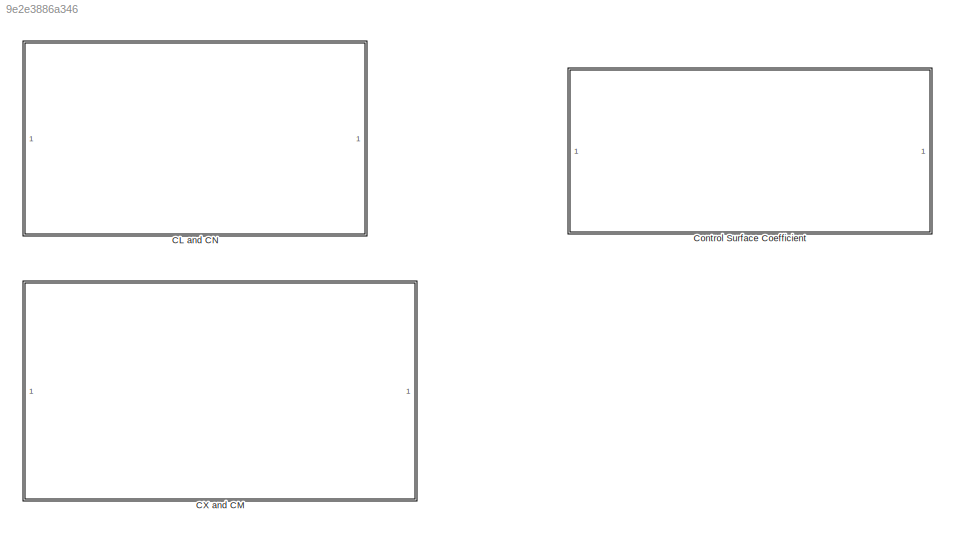
MODEL slx_9e2e3886a346
KIND library
CONFIG AbsTol = auto
CONFIG EnableMultiTasking = off
CONFIG FixedStep = auto
CONFIG MaxStep = auto
CONFIG MinStep = auto
CONFIG RelTol = 1e-3
CONFIG SampleTimeConstraint = Unconstrained
CONFIG SolverName = VariableStepAuto
CONFIG StartTime = 0.0
CONFIG StopTime = 10.0
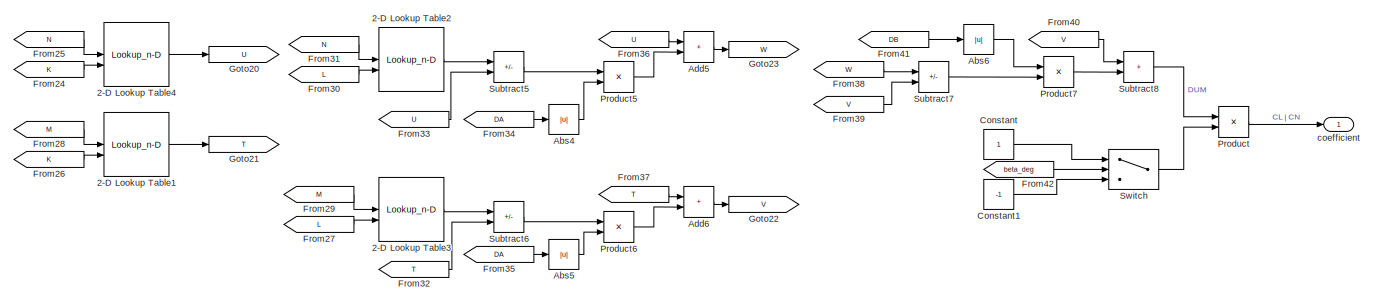
[diagram: CL and CN - part 1/2, right side, full height]
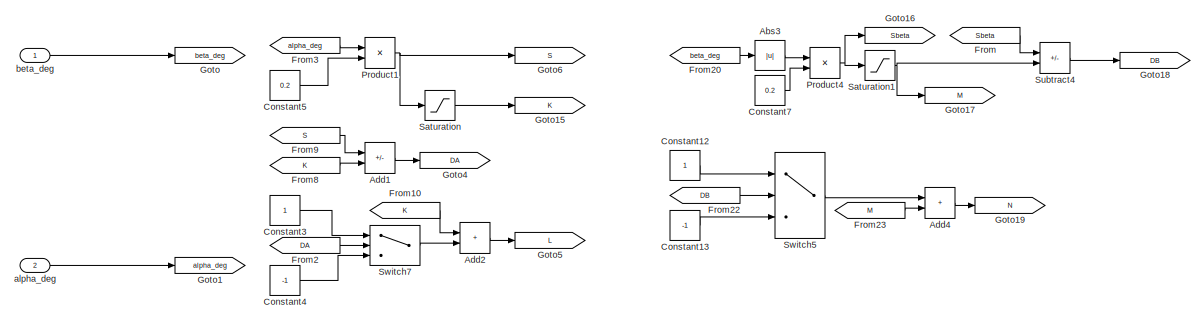
[diagram: CL and CN - part 2/2, left side, full height]
BLOCK [SubSystem] CL and CN
BLOCK [Lookup_n-D] CL and CN/2-D Lookup Table1
  BreakpointsForDimension1 = betaBkpts_nd
  BreakpointsForDimension2 = alphaBkpts_nd
  DiagnosticForOutOfRangeInput = Warning
  ExtrapMethod = Clip
  InputPortMap = u0,u1
  InternalRulePriority = Speed
  RndMeth = Simplest
  Table = aeroData
BLOCK [Lookup_n-D] CL and CN/2-D Lookup Table2
  BreakpointsForDimension1 = betaBkpts_nd
  BreakpointsForDimension2 = alphaBkpts_nd
  DiagnosticForOutOfRangeInput = Warning
  ExtrapMethod = Clip
  InputPortMap = u0,u1
  InternalRulePriority = Speed
  RndMeth = Simplest
  Table = aeroData
BLOCK [Lookup_n-D] CL and CN/2-D Lookup Table3
  BreakpointsForDimension1 = betaBkpts_nd
  BreakpointsForDimension2 = alphaBkpts_nd
  DiagnosticForOutOfRangeInput = Warning
  ExtrapMethod = Clip
  InputPortMap = u0,u1
  InternalRulePriority = Speed
  RndMeth = Simplest
  Table = aeroData
BLOCK [Lookup_n-D] CL and CN/2-D Lookup Table4
  BreakpointsForDimension1 = betaBkpts_nd
  BreakpointsForDimension2 = alphaBkpts_nd
  DiagnosticForOutOfRangeInput = Warning
  ExtrapMethod = Clip
  InputPortMap = u0,u1
  InternalRulePriority = Speed
  RndMeth = Simplest
  Table = aeroData
BLOCK [Abs] CL and CN/Abs3
  SaturateOnIntegerOverflow = off
BLOCK [Abs] CL and CN/Abs4
  SaturateOnIntegerOverflow = off
BLOCK [Abs] CL and CN/Abs5
  SaturateOnIntegerOverflow = off
BLOCK [Abs] CL and CN/Abs6
  SaturateOnIntegerOverflow = off
BLOCK [Sum] CL and CN/Add1
  IconShape = rectangular
  Inputs = +-
BLOCK [Sum] CL and CN/Add2
  IconShape = rectangular
BLOCK [Sum] CL and CN/Add4
  IconShape = rectangular
BLOCK [Sum] CL and CN/Add5
  IconShape = rectangular
BLOCK [Sum] CL and CN/Add6
  IconShape = rectangular
BLOCK [Constant] CL and CN/Constant
BLOCK [Constant] CL and CN/Constant1
  Value = -1
BLOCK [Constant] CL and CN/Constant12
BLOCK [Constant] CL and CN/Constant13
  Value = -1
BLOCK [Constant] CL and CN/Constant3
BLOCK [Constant] CL and CN/Constant4
  Value = -1
BLOCK [Constant] CL and CN/Constant5
  Value = 0.2
BLOCK [Constant] CL and CN/Constant7
  Value = 0.2
BLOCK [From] CL and CN/From
  GotoTag = Sbeta
BLOCK [From] CL and CN/From10
  GotoTag = K
BLOCK [From] CL and CN/From2
  GotoTag = DA
BLOCK [From] CL and CN/From20
  GotoTag = beta_deg
BLOCK [From] CL and CN/From22
  GotoTag = DB
BLOCK [From] CL and CN/From23
  GotoTag = M
BLOCK [From] CL and CN/From24
  GotoTag = K
BLOCK [From] CL and CN/From25
  GotoTag = N
BLOCK [From] CL and CN/From26
  GotoTag = K
BLOCK [From] CL and CN/From27
  GotoTag = L
BLOCK [From] CL and CN/From28
  GotoTag = M
BLOCK [From] CL and CN/From29
  GotoTag = M
BLOCK [From] CL and CN/From3
  GotoTag = alpha_deg
BLOCK [From] CL and CN/From30
  GotoTag = L
BLOCK [From] CL and CN/From31
  GotoTag = N
BLOCK [From] CL and CN/From32
  GotoTag = T
BLOCK [From] CL and CN/From33
  GotoTag = U
BLOCK [From] CL and CN/From34
  GotoTag = DA
BLOCK [From] CL and CN/From35
  GotoTag = DA
BLOCK [From] CL and CN/From36
  GotoTag = U
BLOCK [From] CL and CN/From37
  GotoTag = T
BLOCK [From] CL and CN/From38
  GotoTag = W
BLOCK [From] CL and CN/From39
  GotoTag = V
BLOCK [From] CL and CN/From40
  GotoTag = V
BLOCK [From] CL and CN/From41
  GotoTag = DB
BLOCK [From] CL and CN/From42
  GotoTag = beta_deg
BLOCK [From] CL and CN/From8
  GotoTag = K
BLOCK [From] CL and CN/From9
  GotoTag = S
BLOCK [Goto] CL and CN/Goto
  GotoTag = beta_deg
BLOCK [Goto] CL and CN/Goto1
  GotoTag = alpha_deg
BLOCK [Goto] CL and CN/Goto15
  GotoTag = K
BLOCK [Goto] CL and CN/Goto16
  GotoTag = Sbeta
BLOCK [Goto] CL and CN/Goto17
  GotoTag = M
BLOCK [Goto] CL and CN/Goto18
  GotoTag = DB
BLOCK [Goto] CL and CN/Goto19
  GotoTag = N
BLOCK [Goto] CL and CN/Goto20
  GotoTag = U
BLOCK [Goto] CL and CN/Goto21
  GotoTag = T
BLOCK [Goto] CL and CN/Goto22
  GotoTag = V
BLOCK [Goto] CL and CN/Goto23
  GotoTag = W
BLOCK [Goto] CL and CN/Goto4
  GotoTag = DA
BLOCK [Goto] CL and CN/Goto5
  GotoTag = L
BLOCK [Goto] CL and CN/Goto6
  GotoTag = S
BLOCK [Product] CL and CN/Product
BLOCK [Product] CL and CN/Product1
BLOCK [Product] CL and CN/Product4
BLOCK [Product] CL and CN/Product5
BLOCK [Product] CL and CN/Product6
BLOCK [Product] CL and CN/Product7
BLOCK [Saturate] CL and CN/Saturation
  LowerLimit = -1
  UpperLimit = 8
BLOCK [Saturate] CL and CN/Saturation1
  LowerLimit = 1
  UpperLimit = 5
BLOCK [Sum] CL and CN/Subtract4
  IconShape = rectangular
  Inputs = +-
BLOCK [Sum] CL and CN/Subtract5
  IconShape = rectangular
  Inputs = +-
BLOCK [Sum] CL and CN/Subtract6
  IconShape = rectangular
  Inputs = +-
BLOCK [Sum] CL and CN/Subtract7
  IconShape = rectangular
  Inputs = +-
BLOCK [Sum] CL and CN/Subtract8
  IconShape = rectangular
BLOCK [Switch] CL and CN/Switch
  InputSameDT = off
  SaturateOnIntegerOverflow = off
BLOCK [Switch] CL and CN/Switch5
  InputSameDT = off
  SaturateOnIntegerOverflow = off
BLOCK [Switch] CL and CN/Switch7
  InputSameDT = off
  SaturateOnIntegerOverflow = off
BLOCK [Inport] CL and CN/alpha_deg
  Port = 2
BLOCK [Inport] CL and CN/beta_deg
BLOCK [Outport] CL and CN/coefficient
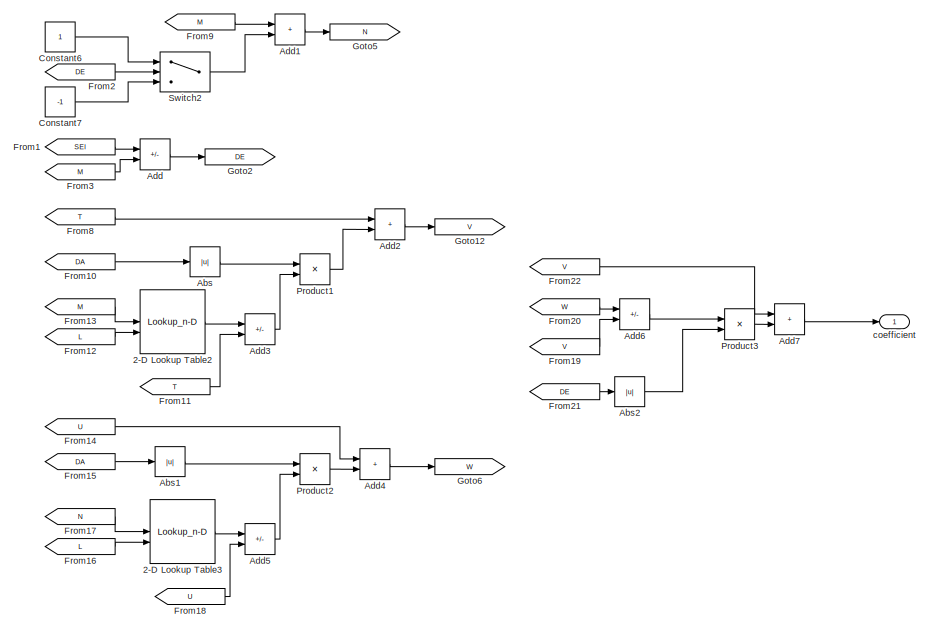
[diagram: CX and CM - part 1/2, right side, full height]
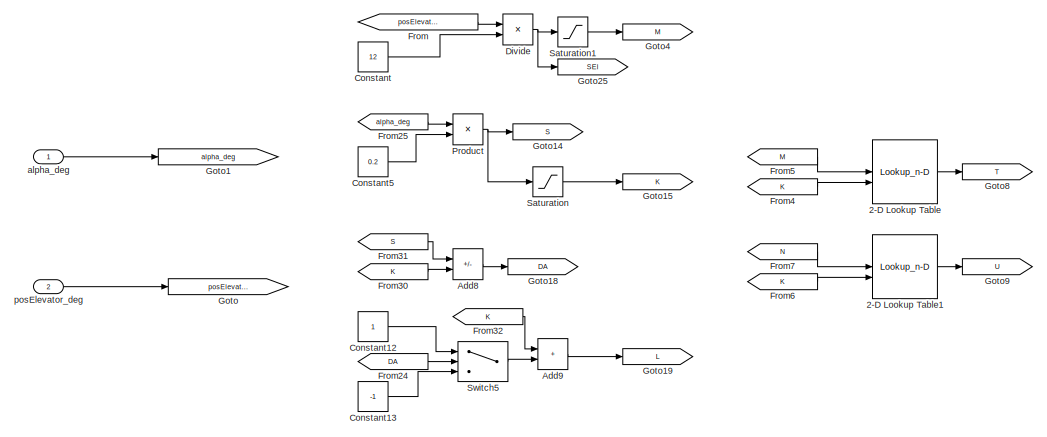
[diagram: CX and CM - part 2/2, middle left region]
BLOCK [SubSystem] CX and CM
BLOCK [Lookup_n-D] CX and CM/2-D Lookup Table
  BreakpointsForDimension1 = elevBkpts_nd
  BreakpointsForDimension2 = alphaBkpts_nd
  DiagnosticForOutOfRangeInput = Warning
  ExtrapMethod = Clip
  InputPortMap = u0,u1
  InternalRulePriority = Speed
  RndMeth = Simplest
  Table = aeroData
BLOCK [Lookup_n-D] CX and CM/2-D Lookup Table1
  BreakpointsForDimension1 = elevBkpts_nd
  BreakpointsForDimension2 = alphaBkpts_nd
  DiagnosticForOutOfRangeInput = Warning
  ExtrapMethod = Clip
  InputPortMap = u0,u1
  InternalRulePriority = Speed
  RndMeth = Simplest
  Table = aeroData
BLOCK [Lookup_n-D] CX and CM/2-D Lookup Table2
  BreakpointsForDimension1 = elevBkpts_nd
  BreakpointsForDimension2 = alphaBkpts_nd
  DiagnosticForOutOfRangeInput = Warning
  ExtrapMethod = Clip
  InputPortMap = u0,u1
  InternalRulePriority = Speed
  RndMeth = Simplest
  Table = aeroData
BLOCK [Lookup_n-D] CX and CM/2-D Lookup Table3
  BreakpointsForDimension1 = elevBkpts_nd
  BreakpointsForDimension2 = alphaBkpts_nd
  DiagnosticForOutOfRangeInput = Warning
  ExtrapMethod = Clip
  InputPortMap = u0,u1
  InternalRulePriority = Speed
  RndMeth = Simplest
  Table = aeroData
BLOCK [Abs] CX and CM/Abs
  SaturateOnIntegerOverflow = off
BLOCK [Abs] CX and CM/Abs1
  SaturateOnIntegerOverflow = off
BLOCK [Abs] CX and CM/Abs2
  SaturateOnIntegerOverflow = off
BLOCK [Sum] CX and CM/Add
  IconShape = rectangular
  Inputs = +-
BLOCK [Sum] CX and CM/Add1
  IconShape = rectangular
BLOCK [Sum] CX and CM/Add2
  IconShape = rectangular
BLOCK [Sum] CX and CM/Add3
  IconShape = rectangular
  Inputs = +-
BLOCK [Sum] CX and CM/Add4
  IconShape = rectangular
BLOCK [Sum] CX and CM/Add5
  IconShape = rectangular
  Inputs = +-
BLOCK [Sum] CX and CM/Add6
  IconShape = rectangular
  Inputs = +-
BLOCK [Sum] CX and CM/Add7
  IconShape = rectangular
BLOCK [Sum] CX and CM/Add8
  IconShape = rectangular
  Inputs = +-
BLOCK [Sum] CX and CM/Add9
  IconShape = rectangular
BLOCK [Constant] CX and CM/Constant
  Value = 12
BLOCK [Constant] CX and CM/Constant12
BLOCK [Constant] CX and CM/Constant13
  Value = -1
BLOCK [Constant] CX and CM/Constant5
  Value = 0.2
BLOCK [Constant] CX and CM/Constant6
BLOCK [Constant] CX and CM/Constant7
  Value = -1
BLOCK [Product] CX and CM/Divide
  Inputs = */
BLOCK [From] CX and CM/From
  GotoTag = posElevator_deg
BLOCK [From] CX and CM/From1
  GotoTag = SEl
BLOCK [From] CX and CM/From10
  GotoTag = DA
BLOCK [From] CX and CM/From11
  GotoTag = T
BLOCK [From] CX and CM/From12
  GotoTag = L
BLOCK [From] CX and CM/From13
  GotoTag = M
BLOCK [From] CX and CM/From14
  GotoTag = U
BLOCK [From] CX and CM/From15
  GotoTag = DA
BLOCK [From] CX and CM/From16
  GotoTag = L
BLOCK [From] CX and CM/From17
  GotoTag = N
BLOCK [From] CX and CM/From18
  GotoTag = U
BLOCK [From] CX and CM/From19
  GotoTag = V
BLOCK [From] CX and CM/From2
  GotoTag = DE
BLOCK [From] CX and CM/From20
  GotoTag = W
BLOCK [From] CX and CM/From21
  GotoTag = DE
BLOCK [From] CX and CM/From22
  GotoTag = V
BLOCK [From] CX and CM/From24
  GotoTag = DA
BLOCK [From] CX and CM/From25
  GotoTag = alpha_deg
BLOCK [From] CX and CM/From3
  GotoTag = M
BLOCK [From] CX and CM/From30
  GotoTag = K
BLOCK [From] CX and CM/From31
  GotoTag = S
BLOCK [From] CX and CM/From32
  GotoTag = K
BLOCK [From] CX and CM/From4
  GotoTag = K
BLOCK [From] CX and CM/From5
  GotoTag = M
BLOCK [From] CX and CM/From6
  GotoTag = K
BLOCK [From] CX and CM/From7
  GotoTag = N
BLOCK [From] CX and CM/From8
  GotoTag = T
BLOCK [From] CX and CM/From9
  GotoTag = M
BLOCK [Goto] CX and CM/Goto
  GotoTag = posElevator_deg
BLOCK [Goto] CX and CM/Goto1
  GotoTag = alpha_deg
BLOCK [Goto] CX and CM/Goto12
  GotoTag = V
BLOCK [Goto] CX and CM/Goto14
  GotoTag = S
BLOCK [Goto] CX and CM/Goto15
  GotoTag = K
BLOCK [Goto] CX and CM/Goto18
  GotoTag = DA
BLOCK [Goto] CX and CM/Goto19
  GotoTag = L
BLOCK [Goto] CX and CM/Goto2
  GotoTag = DE
BLOCK [Goto] CX and CM/Goto25
  GotoTag = SEl
BLOCK [Goto] CX and CM/Goto4
  GotoTag = M
BLOCK [Goto] CX and CM/Goto5
  GotoTag = N
BLOCK [Goto] CX and CM/Goto6
  GotoTag = W
BLOCK [Goto] CX and CM/Goto8
  GotoTag = T
BLOCK [Goto] CX and CM/Goto9
  GotoTag = U
BLOCK [Product] CX and CM/Product
BLOCK [Product] CX and CM/Product1
BLOCK [Product] CX and CM/Product2
BLOCK [Product] CX and CM/Product3
BLOCK [Saturate] CX and CM/Saturation
  LowerLimit = -1
  UpperLimit = 8
BLOCK [Saturate] CX and CM/Saturation1
  LowerLimit = -1
  UpperLimit = 1
BLOCK [Switch] CX and CM/Switch2
  InputSameDT = off
  SaturateOnIntegerOverflow = off
BLOCK [Switch] CX and CM/Switch5
  InputSameDT = off
  SaturateOnIntegerOverflow = off
BLOCK [Inport] CX and CM/alpha_deg
BLOCK [Outport] CX and CM/coefficient
BLOCK [Inport] CX and CM/posElevator_deg
  Port = 2
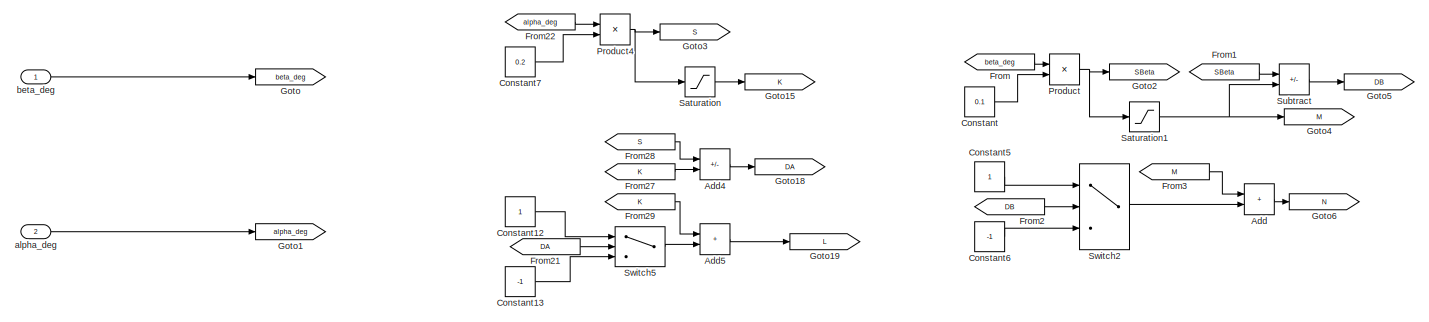
[diagram: Control Surface Coefficient - part 1/2, left side, full height]
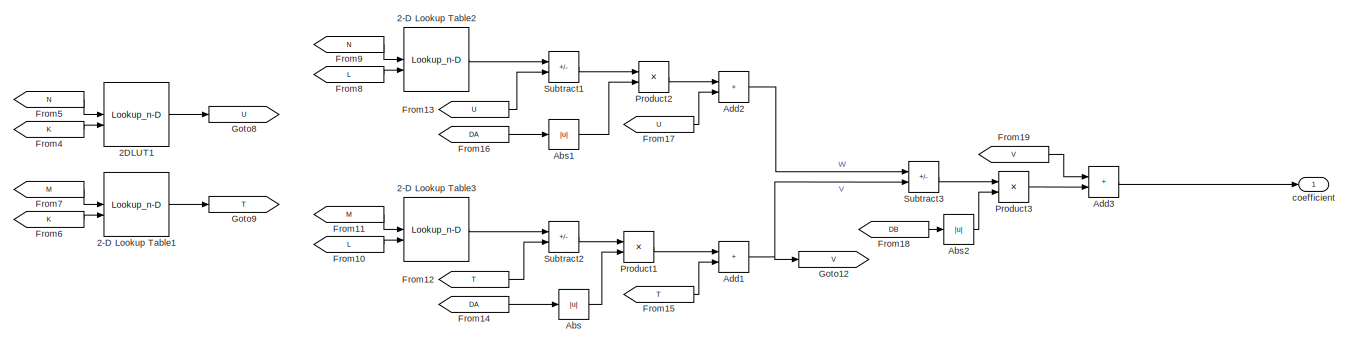
[diagram: Control Surface Coefficient - part 2/2, right side, full height]
BLOCK [SubSystem] Control Surface Coefficient
BLOCK [Lookup_n-D] Control Surface Coefficient/2-D Lookup Table1
  BreakpointsForDimension1 = betaBkpts_nd
  BreakpointsForDimension2 = alphaBkpts_nd
  DiagnosticForOutOfRangeInput = Warning
  ExtrapMethod = Clip
  InputPortMap = u0,u1
  InternalRulePriority = Speed
  RndMeth = Simplest
  Table = aeroData
BLOCK [Lookup_n-D] Control Surface Coefficient/2-D Lookup Table2
  BreakpointsForDimension1 = betaBkpts_nd
  BreakpointsForDimension2 = alphaBkpts_nd
  DiagnosticForOutOfRangeInput = Warning
  ExtrapMethod = Clip
  InputPortMap = u0,u1
  InternalRulePriority = Speed
  RndMeth = Simplest
  Table = aeroData
BLOCK [Lookup_n-D] Control Surface Coefficient/2-D Lookup Table3
  BreakpointsForDimension1 = betaBkpts_nd
  BreakpointsForDimension2 = alphaBkpts_nd
  DiagnosticForOutOfRangeInput = Warning
  ExtrapMethod = Clip
  InputPortMap = u0,u1
  InternalRulePriority = Speed
  RndMeth = Simplest
  Table = aeroData
BLOCK [Lookup_n-D] Control Surface Coefficient/2DLUT1
  BreakpointsForDimension1 = betaBkpts_nd
  BreakpointsForDimension2 = alphaBkpts_nd
  DiagnosticForOutOfRangeInput = Warning
  ExtrapMethod = Clip
  InputPortMap = u0,u1
  InternalRulePriority = Speed
  RndMeth = Simplest
  Table = aeroData
BLOCK [Abs] Control Surface Coefficient/Abs
  SaturateOnIntegerOverflow = off
BLOCK [Abs] Control Surface Coefficient/Abs1
  SaturateOnIntegerOverflow = off
BLOCK [Abs] Control Surface Coefficient/Abs2
  SaturateOnIntegerOverflow = off
BLOCK [Sum] Control Surface Coefficient/Add
  IconShape = rectangular
BLOCK [Sum] Control Surface Coefficient/Add1
  IconShape = rectangular
BLOCK [Sum] Control Surface Coefficient/Add2
  IconShape = rectangular
BLOCK [Sum] Control Surface Coefficient/Add3
  IconShape = rectangular
BLOCK [Sum] Control Surface Coefficient/Add4
  IconShape = rectangular
  Inputs = +-
BLOCK [Sum] Control Surface Coefficient/Add5
  IconShape = rectangular
BLOCK [Constant] Control Surface Coefficient/Constant
  Value = 0.1
BLOCK [Constant] Control Surface Coefficient/Constant12
BLOCK [Constant] Control Surface Coefficient/Constant13
  Value = -1
BLOCK [Constant] Control Surface Coefficient/Constant5
BLOCK [Constant] Control Surface Coefficient/Constant6
  Value = -1
BLOCK [Constant] Control Surface Coefficient/Constant7
  Value = 0.2
BLOCK [From] Control Surface Coefficient/From
  GotoTag = beta_deg
BLOCK [From] Control Surface Coefficient/From1
  GotoTag = SBeta
BLOCK [From] Control Surface Coefficient/From10
  GotoTag = L
BLOCK [From] Control Surface Coefficient/From11
  GotoTag = M
BLOCK [From] Control Surface Coefficient/From12
  GotoTag = T
BLOCK [From] Control Surface Coefficient/From13
  GotoTag = U
BLOCK [From] Control Surface Coefficient/From14
  GotoTag = DA
BLOCK [From] Control Surface Coefficient/From15
  GotoTag = T
BLOCK [From] Control Surface Coefficient/From16
  GotoTag = DA
BLOCK [From] Control Surface Coefficient/From17
  GotoTag = U
BLOCK [From] Control Surface Coefficient/From18
  GotoTag = DB
BLOCK [From] Control Surface Coefficient/From19
  GotoTag = V
BLOCK [From] Control Surface Coefficient/From2
  GotoTag = DB
BLOCK [From] Control Surface Coefficient/From21
  GotoTag = DA
BLOCK [From] Control Surface Coefficient/From22
  GotoTag = alpha_deg
BLOCK [From] Control Surface Coefficient/From27
  GotoTag = K
BLOCK [From] Control Surface Coefficient/From28
  GotoTag = S
BLOCK [From] Control Surface Coefficient/From29
  GotoTag = K
BLOCK [From] Control Surface Coefficient/From3
  GotoTag = M
BLOCK [From] Control Surface Coefficient/From4
  GotoTag = K
BLOCK [From] Control Surface Coefficient/From5
  GotoTag = N
BLOCK [From] Control Surface Coefficient/From6
  GotoTag = K
BLOCK [From] Control Surface Coefficient/From7
  GotoTag = M
BLOCK [From] Control Surface Coefficient/From8
  GotoTag = L
BLOCK [From] Control Surface Coefficient/From9
  GotoTag = N
BLOCK [Goto] Control Surface Coefficient/Goto
  GotoTag = beta_deg
BLOCK [Goto] Control Surface Coefficient/Goto1
  GotoTag = alpha_deg
BLOCK [Goto] Control Surface Coefficient/Goto12
  GotoTag = V
BLOCK [Goto] Control Surface Coefficient/Goto15
  GotoTag = K
BLOCK [Goto] Control Surface Coefficient/Goto18
  GotoTag = DA
BLOCK [Goto] Control Surface Coefficient/Goto19
  GotoTag = L
BLOCK [Goto] Control Surface Coefficient/Goto2
  GotoTag = SBeta
BLOCK [Goto] Control Surface Coefficient/Goto3
  GotoTag = S
BLOCK [Goto] Control Surface Coefficient/Goto4
  GotoTag = M
BLOCK [Goto] Control Surface Coefficient/Goto5
  GotoTag = DB
BLOCK [Goto] Control Surface Coefficient/Goto6
  GotoTag = N
BLOCK [Goto] Control Surface Coefficient/Goto8
  GotoTag = U
BLOCK [Goto] Control Surface Coefficient/Goto9
  GotoTag = T
BLOCK [Product] Control Surface Coefficient/Product
BLOCK [Product] Control Surface Coefficient/Product1
BLOCK [Product] Control Surface Coefficient/Product2
BLOCK [Product] Control Surface Coefficient/Product3
BLOCK [Product] Control Surface Coefficient/Product4
BLOCK [Saturate] Control Surface Coefficient/Saturation
  LowerLimit = -1
  UpperLimit = 8
BLOCK [Saturate] Control Surface Coefficient/Saturation1
  LinearizeAsGain = off
  LowerLimit = -2
  UpperLimit = 2
BLOCK [Sum] Control Surface Coefficient/Subtract
  IconShape = rectangular
  Inputs = +-
BLOCK [Sum] Control Surface Coefficient/Subtract1
  IconShape = rectangular
  Inputs = +-
BLOCK [Sum] Control Surface Coefficient/Subtract2
  IconShape = rectangular
  Inputs = +-
BLOCK [Sum] Control Surface Coefficient/Subtract3
  IconShape = rectangular
  Inputs = +-
BLOCK [Switch] Control Surface Coefficient/Switch2
  InputSameDT = off
  SaturateOnIntegerOverflow = off
BLOCK [Switch] Control Surface Coefficient/Switch5
  InputSameDT = off
  SaturateOnIntegerOverflow = off
BLOCK [Inport] Control Surface Coefficient/alpha_deg
  Port = 2
BLOCK [Inport] Control Surface Coefficient/beta_deg
BLOCK [Outport] Control Surface Coefficient/coefficient
LINE CL and CN/2-D Lookup Table1:1 -> CL and CN/Goto21:1
LINE CL and CN/2-D Lookup Table2:1 -> CL and CN/Subtract5:1
LINE CL and CN/2-D Lookup Table3:1 -> CL and CN/Subtract6:1
LINE CL and CN/2-D Lookup Table4:1 -> CL and CN/Goto20:1
LINE CL and CN/Abs3:1 -> CL and CN/Product4:1
LINE CL and CN/Abs4:1 -> CL and CN/Product5:2
LINE CL and CN/Abs5:1 -> CL and CN/Product6:2
LINE CL and CN/Abs6:1 -> CL and CN/Product7:1
LINE CL and CN/Add1:1 -> CL and CN/Goto4:1
LINE CL and CN/Add2:1 -> CL and CN/Goto5:1
LINE CL and CN/Add4:1 -> CL and CN/Goto19:1
LINE CL and CN/Add5:1 -> CL and CN/Goto23:1
LINE CL and CN/Add6:1 -> CL and CN/Goto22:1
LINE CL and CN/Constant12:1 -> CL and CN/Switch5:1
LINE CL and CN/Constant13:1 -> CL and CN/Switch5:3
LINE CL and CN/Constant1:1 -> CL and CN/Switch:3
LINE CL and CN/Constant3:1 -> CL and CN/Switch7:1
LINE CL and CN/Constant4:1 -> CL and CN/Switch7:3
LINE CL and CN/Constant5:1 -> CL and CN/Product1:2
LINE CL and CN/Constant7:1 -> CL and CN/Product4:2
LINE CL and CN/Constant:1 -> CL and CN/Switch:1
LINE CL and CN/From10:1 -> CL and CN/Add2:1
LINE CL and CN/From20:1 -> CL and CN/Abs3:1
LINE CL and CN/From22:1 -> CL and CN/Switch5:2
LINE CL and CN/From23:1 -> CL and CN/Add4:2
LINE CL and CN/From24:1 -> CL and CN/2-D Lookup Table4:2
LINE CL and CN/From25:1 -> CL and CN/2-D Lookup Table4:1
LINE CL and CN/From26:1 -> CL and CN/2-D Lookup Table1:2
LINE CL and CN/From27:1 -> CL and CN/2-D Lookup Table3:2
LINE CL and CN/From28:1 -> CL and CN/2-D Lookup Table1:1
LINE CL and CN/From29:1 -> CL and CN/2-D Lookup Table3:1
LINE CL and CN/From2:1 -> CL and CN/Switch7:2
LINE CL and CN/From30:1 -> CL and CN/2-D Lookup Table2:2
LINE CL and CN/From31:1 -> CL and CN/2-D Lookup Table2:1
LINE CL and CN/From32:1 -> CL and CN/Subtract6:2
LINE CL and CN/From33:1 -> CL and CN/Subtract5:2
LINE CL and CN/From34:1 -> CL and CN/Abs4:1
LINE CL and CN/From35:1 -> CL and CN/Abs5:1
LINE CL and CN/From36:1 -> CL and CN/Add5:1
LINE CL and CN/From37:1 -> CL and CN/Add6:1
LINE CL and CN/From38:1 -> CL and CN/Subtract7:1
LINE CL and CN/From39:1 -> CL and CN/Subtract7:2
LINE CL and CN/From3:1 -> CL and CN/Product1:1
LINE CL and CN/From40:1 -> CL and CN/Subtract8:1
LINE CL and CN/From41:1 -> CL and CN/Abs6:1
LINE CL and CN/From42:1 -> CL and CN/Switch:2
LINE CL and CN/From8:1 -> CL and CN/Add1:2
LINE CL and CN/From9:1 -> CL and CN/Add1:1
LINE CL and CN/From:1 -> CL and CN/Subtract4:1
NET CL and CN/Product1:1 -> CL and CN/Goto6:1, CL and CN/Saturation:1
NET CL and CN/Product4:1 -> CL and CN/Goto16:1, CL and CN/Saturation1:1
LINE CL and CN/Product5:1 -> CL and CN/Add5:2
LINE CL and CN/Product6:1 -> CL and CN/Add6:2
LINE CL and CN/Product7:1 -> CL and CN/Subtract8:2
LINE CL and CN/Product:1 -> CL and CN/coefficient:1
NET CL and CN/Saturation1:1 -> CL and CN/Goto17:1, CL and CN/Subtract4:2
LINE CL and CN/Saturation:1 -> CL and CN/Goto15:1
LINE CL and CN/Subtract4:1 -> CL and CN/Goto18:1
LINE CL and CN/Subtract5:1 -> CL and CN/Product5:1
LINE CL and CN/Subtract6:1 -> CL and CN/Product6:1
LINE CL and CN/Subtract7:1 -> CL and CN/Product7:2
LINE CL and CN/Subtract8:1 -> CL and CN/Product:1
LINE CL and CN/Switch5:1 -> CL and CN/Add4:1
LINE CL and CN/Switch7:1 -> CL and CN/Add2:2
LINE CL and CN/Switch:1 -> CL and CN/Product:2
LINE CL and CN/alpha_deg:1 -> CL and CN/Goto1:1
LINE CL and CN/beta_deg:1 -> CL and CN/Goto:1
LINE CX and CM/2-D Lookup Table1:1 -> CX and CM/Goto9:1
LINE CX and CM/2-D Lookup Table2:1 -> CX and CM/Add3:1
LINE CX and CM/2-D Lookup Table3:1 -> CX and CM/Add5:1
LINE CX and CM/2-D Lookup Table:1 -> CX and CM/Goto8:1
LINE CX and CM/Abs1:1 -> CX and CM/Product2:1
LINE CX and CM/Abs2:1 -> CX and CM/Product3:2
LINE CX and CM/Abs:1 -> CX and CM/Product1:1
LINE CX and CM/Add1:1 -> CX and CM/Goto5:1
LINE CX and CM/Add2:1 -> CX and CM/Goto12:1
LINE CX and CM/Add3:1 -> CX and CM/Product1:2
LINE CX and CM/Add4:1 -> CX and CM/Goto6:1
LINE CX and CM/Add5:1 -> CX and CM/Product2:2
LINE CX and CM/Add6:1 -> CX and CM/Product3:1
LINE CX and CM/Add7:1 -> CX and CM/coefficient:1
LINE CX and CM/Add8:1 -> CX and CM/Goto18:1
LINE CX and CM/Add9:1 -> CX and CM/Goto19:1
LINE CX and CM/Add:1 -> CX and CM/Goto2:1
LINE CX and CM/Constant12:1 -> CX and CM/Switch5:1
LINE CX and CM/Constant13:1 -> CX and CM/Switch5:3
LINE CX and CM/Constant5:1 -> CX and CM/Product:2
LINE CX and CM/Constant6:1 -> CX and CM/Switch2:1
LINE CX and CM/Constant7:1 -> CX and CM/Switch2:3
LINE CX and CM/Constant:1 -> CX and CM/Divide:2
NET CX and CM/Divide:1 -> CX and CM/Goto25:1, CX and CM/Saturation1:1
LINE CX and CM/From10:1 -> CX and CM/Abs:1
LINE CX and CM/From11:1 -> CX and CM/Add3:2
LINE CX and CM/From12:1 -> CX and CM/2-D Lookup Table2:2
LINE CX and CM/From13:1 -> CX and CM/2-D Lookup Table2:1
LINE CX and CM/From14:1 -> CX and CM/Add4:1
LINE CX and CM/From15:1 -> CX and CM/Abs1:1
LINE CX and CM/From16:1 -> CX and CM/2-D Lookup Table3:2
LINE CX and CM/From17:1 -> CX and CM/2-D Lookup Table3:1
LINE CX and CM/From18:1 -> CX and CM/Add5:2
LINE CX and CM/From19:1 -> CX and CM/Add6:2
LINE CX and CM/From1:1 -> CX and CM/Add:1
LINE CX and CM/From20:1 -> CX and CM/Add6:1
LINE CX and CM/From21:1 -> CX and CM/Abs2:1
LINE CX and CM/From22:1 -> CX and CM/Add7:1
LINE CX and CM/From24:1 -> CX and CM/Switch5:2
LINE CX and CM/From25:1 -> CX and CM/Product:1
LINE CX and CM/From2:1 -> CX and CM/Switch2:2
LINE CX and CM/From30:1 -> CX and CM/Add8:2
LINE CX and CM/From31:1 -> CX and CM/Add8:1
LINE CX and CM/From32:1 -> CX and CM/Add9:1
LINE CX and CM/From3:1 -> CX and CM/Add:2
LINE CX and CM/From4:1 -> CX and CM/2-D Lookup Table:2
LINE CX and CM/From5:1 -> CX and CM/2-D Lookup Table:1
LINE CX and CM/From6:1 -> CX and CM/2-D Lookup Table1:2
LINE CX and CM/From7:1 -> CX and CM/2-D Lookup Table1:1
LINE CX and CM/From8:1 -> CX and CM/Add2:1
LINE CX and CM/From9:1 -> CX and CM/Add1:1
LINE CX and CM/From:1 -> CX and CM/Divide:1
LINE CX and CM/Product1:1 -> CX and CM/Add2:2
LINE CX and CM/Product2:1 -> CX and CM/Add4:2
LINE CX and CM/Product3:1 -> CX and CM/Add7:2
NET CX and CM/Product:1 -> CX and CM/Goto14:1, CX and CM/Saturation:1
LINE CX and CM/Saturation1:1 -> CX and CM/Goto4:1
LINE CX and CM/Saturation:1 -> CX and CM/Goto15:1
LINE CX and CM/Switch2:1 -> CX and CM/Add1:2
LINE CX and CM/Switch5:1 -> CX and CM/Add9:2
LINE CX and CM/alpha_deg:1 -> CX and CM/Goto1:1
LINE CX and CM/posElevator_deg:1 -> CX and CM/Goto:1
LINE Control Surface Coefficient/2-D Lookup Table1:1 -> Control Surface Coefficient/Goto9:1
LINE Control Surface Coefficient/2-D Lookup Table2:1 -> Control Surface Coefficient/Subtract1:1
LINE Control Surface Coefficient/2-D Lookup Table3:1 -> Control Surface Coefficient/Subtract2:1
LINE Control Surface Coefficient/2DLUT1:1 -> Control Surface Coefficient/Goto8:1
LINE Control Surface Coefficient/Abs1:1 -> Control Surface Coefficient/Product2:2
LINE Control Surface Coefficient/Abs2:1 -> Control Surface Coefficient/Product3:2
LINE Control Surface Coefficient/Abs:1 -> Control Surface Coefficient/Product1:2
NET Control Surface Coefficient/Add1:1 -> Control Surface Coefficient/Goto12:1, Control Surface Coefficient/Subtract3:2
LINE Control Surface Coefficient/Add2:1 -> Control Surface Coefficient/Subtract3:1
LINE Control Surface Coefficient/Add3:1 -> Control Surface Coefficient/coefficient:1
LINE Control Surface Coefficient/Add4:1 -> Control Surface Coefficient/Goto18:1
LINE Control Surface Coefficient/Add5:1 -> Control Surface Coefficient/Goto19:1
LINE Control Surface Coefficient/Add:1 -> Control Surface Coefficient/Goto6:1
LINE Control Surface Coefficient/Constant12:1 -> Control Surface Coefficient/Switch5:1
LINE Control Surface Coefficient/Constant13:1 -> Control Surface Coefficient/Switch5:3
LINE Control Surface Coefficient/Constant5:1 -> Control Surface Coefficient/Switch2:1
LINE Control Surface Coefficient/Constant6:1 -> Control Surface Coefficient/Switch2:3
LINE Control Surface Coefficient/Constant7:1 -> Control Surface Coefficient/Product4:2
LINE Control Surface Coefficient/Constant:1 -> Control Surface Coefficient/Product:2
LINE Control Surface Coefficient/From10:1 -> Control Surface Coefficient/2-D Lookup Table3:2
LINE Control Surface Coefficient/From11:1 -> Control Surface Coefficient/2-D Lookup Table3:1
LINE Control Surface Coefficient/From12:1 -> Control Surface Coefficient/Subtract2:2
LINE Control Surface Coefficient/From13:1 -> Control Surface Coefficient/Subtract1:2
LINE Control Surface Coefficient/From14:1 -> Control Surface Coefficient/Abs:1
LINE Control Surface Coefficient/From15:1 -> Control Surface Coefficient/Add1:2
LINE Control Surface Coefficient/From16:1 -> Control Surface Coefficient/Abs1:1
LINE Control Surface Coefficient/From17:1 -> Control Surface Coefficient/Add2:2
LINE Control Surface Coefficient/From18:1 -> Control Surface Coefficient/Abs2:1
LINE Control Surface Coefficient/From19:1 -> Control Surface Coefficient/Add3:1
LINE Control Surface Coefficient/From1:1 -> Control Surface Coefficient/Subtract:1
LINE Control Surface Coefficient/From21:1 -> Control Surface Coefficient/Switch5:2
LINE Control Surface Coefficient/From22:1 -> Control Surface Coefficient/Product4:1
LINE Control Surface Coefficient/From27:1 -> Control Surface Coefficient/Add4:2
LINE Control Surface Coefficient/From28:1 -> Control Surface Coefficient/Add4:1
LINE Control Surface Coefficient/From29:1 -> Control Surface Coefficient/Add5:1
LINE Control Surface Coefficient/From2:1 -> Control Surface Coefficient/Switch2:2
LINE Control Surface Coefficient/From3:1 -> Control Surface Coefficient/Add:1
LINE Control Surface Coefficient/From4:1 -> Control Surface Coefficient/2DLUT1:2
LINE Control Surface Coefficient/From5:1 -> Control Surface Coefficient/2DLUT1:1
LINE Control Surface Coefficient/From6:1 -> Control Surface Coefficient/2-D Lookup Table1:2
LINE Control Surface Coefficient/From7:1 -> Control Surface Coefficient/2-D Lookup Table1:1
LINE Control Surface Coefficient/From8:1 -> Control Surface Coefficient/2-D Lookup Table2:2
LINE Control Surface Coefficient/From9:1 -> Control Surface Coefficient/2-D Lookup Table2:1
LINE Control Surface Coefficient/From:1 -> Control Surface Coefficient/Product:1
LINE Control Surface Coefficient/Product1:1 -> Control Surface Coefficient/Add1:1
LINE Control Surface Coefficient/Product2:1 -> Control Surface Coefficient/Add2:1
LINE Control Surface Coefficient/Product3:1 -> Control Surface Coefficient/Add3:2
NET Control Surface Coefficient/Product4:1 -> Control Surface Coefficient/Goto3:1, Control Surface Coefficient/Saturation:1
NET Control Surface Coefficient/Product:1 -> Control Surface Coefficient/Goto2:1, Control Surface Coefficient/Saturation1:1
NET Control Surface Coefficient/Saturation1:1 -> Control Surface Coefficient/Goto4:1, Control Surface Coefficient/Subtract:2
LINE Control Surface Coefficient/Saturation:1 -> Control Surface Coefficient/Goto15:1
LINE Control Surface Coefficient/Subtract1:1 -> Control Surface Coefficient/Product2:1
LINE Control Surface Coefficient/Subtract2:1 -> Control Surface Coefficient/Product1:1
LINE Control Surface Coefficient/Subtract3:1 -> Control Surface Coefficient/Product3:1
LINE Control Surface Coefficient/Subtract:1 -> Control Surface Coefficient/Goto5:1
LINE Control Surface Coefficient/Switch2:1 -> Control Surface Coefficient/Add:2
LINE Control Surface Coefficient/Switch5:1 -> Control Surface Coefficient/Add5:2
LINE Control Surface Coefficient/alpha_deg:1 -> Control Surface Coefficient/Goto1:1
LINE Control Surface Coefficient/beta_deg:1 -> Control Surface Coefficient/Goto:1
note: NET lines group one-source signal fan-out (src -> all destinations, sorted); 1:1 wires keep LINE
